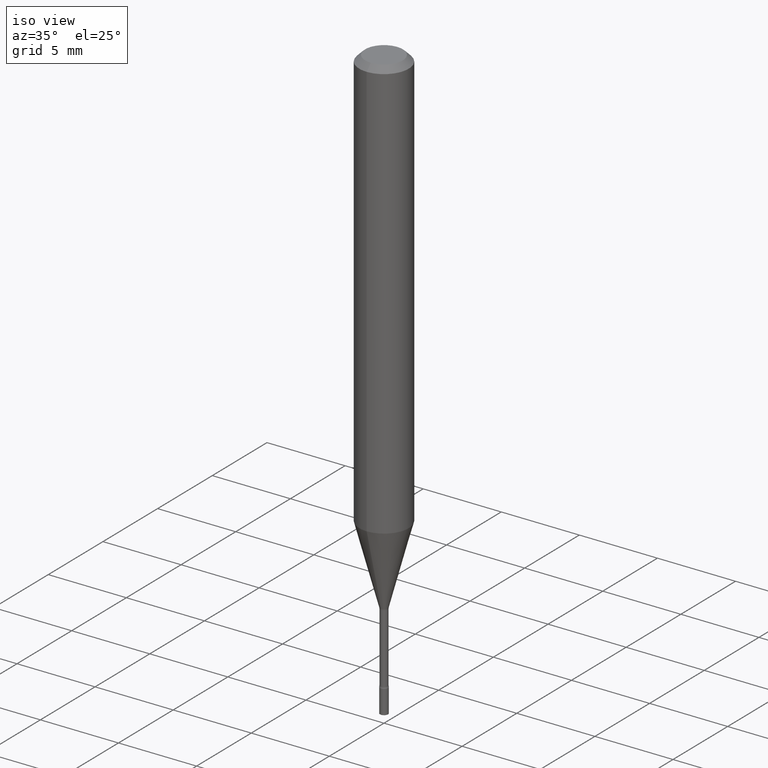
[diagram: clean part render]
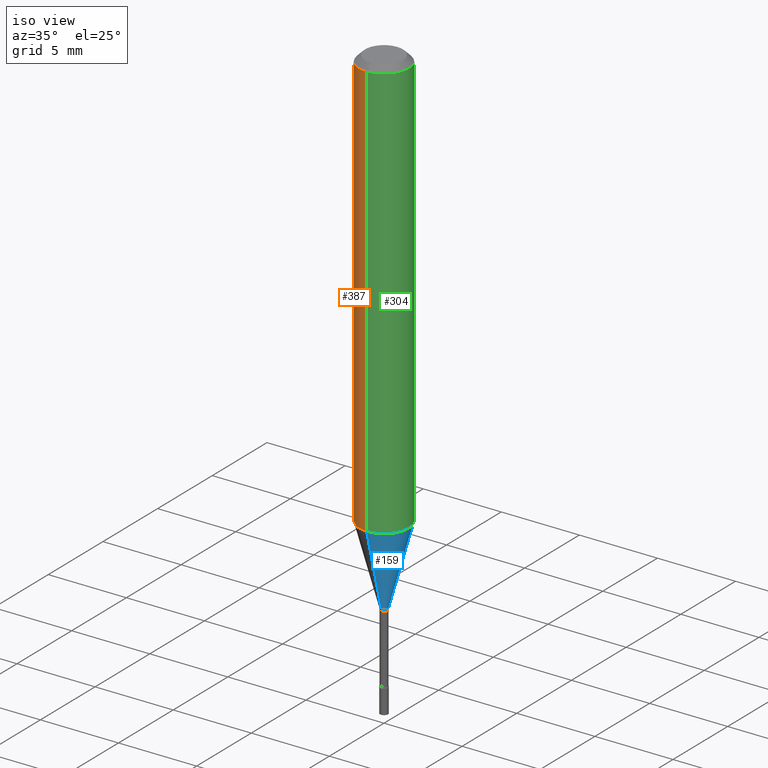
[diagram: same view with three faces highlighted in distinct colors, each labeled with its STEP entity id]
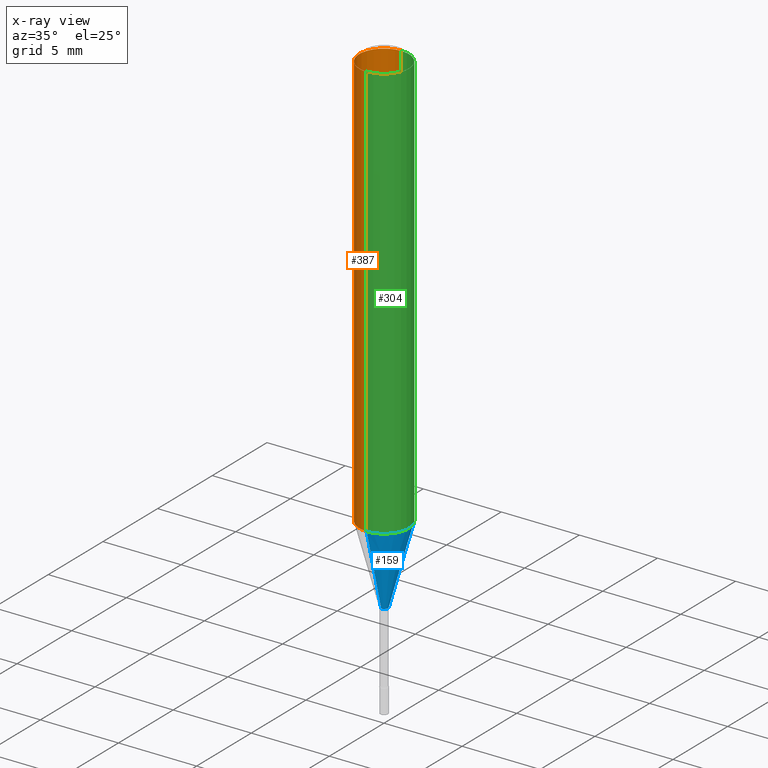
[diagram: x-ray of the same camera — body ghosted, the three highlighted faces saturated]
A machine part, iso view with three faces highlighted in distinct colors.
The next image is the same camera in x-ray (body ghosted, the three faces saturated) — at least one of them is partly hidden behind the body in this view.
Their STEP definitions:

[orange] entity #387 — the highlighted cylindrical surface (edge-blend (fillet) strip) has radius 1.5875 mm, axis along (-0, 0, 1).
#3 = DIRECTION ( 'NONE',  ( -6.982962677686265922E-15, -1.000000000000000000, 3.491392881467327032E-15 ) ) ;
#7 = LINE ( 'NONE', #397, #381 ) ;
#12 = CARTESIAN_POINT ( 'NONE',  ( 4.440892098500884514E-16, 0.06249999999999630157, -1.061828102118093309 ) ) ;
#21 = EDGE_CURVE ( 'NONE', #461, #32, #371, .T. ) ;
#32 = VERTEX_POINT ( 'NONE', #369 ) ;
#39 = DIRECTION ( 'NONE',  ( -2.445530575640527241E-29, 3.491392881467327032E-15, 1.000000000000000000 ) ) ;
#41 = VECTOR ( 'NONE', #420, 39.37007874015748143 ) ;
#62 = CIRCLE ( 'NONE', #341, 0.06250000000000000000 ) ;
#93 = FACE_OUTER_BOUND ( 'NONE', #323, .T. ) ;
#94 = ORIENTED_EDGE ( 'NONE', *, *, #317, .T. ) ;
#119 = VERTEX_POINT ( 'NONE', #419 ) ;
#137 = ORIENTED_EDGE ( 'NONE', *, *, #460, .F. ) ;
#150 = AXIS2_PLACEMENT_3D ( 'NONE', #315, #162, #3 ) ;
#162 = DIRECTION ( 'NONE',  ( -2.445530575640527241E-29, 3.491392881467327032E-15, 1.000000000000000000 ) ) ;
#171 = DIRECTION ( 'NONE',  ( -6.982962677686265922E-15, -1.000000000000000000, 3.483106191921935554E-15 ) ) ;
#175 = CARTESIAN_POINT ( 'NONE',  ( 4.440892098500625669E-16, 0.06250000000000000000, -2.182120550917079395E-16 ) ) ;
#213 = VERTEX_POINT ( 'NONE', #277 ) ;
#249 = CARTESIAN_POINT ( 'NONE',  ( 2.596733089804148317E-29, -3.707259077077071931E-15, -1.061828102118093087 ) ) ;
#277 = CARTESIAN_POINT ( 'NONE',  ( -4.364351673553657849E-16, -0.06250000000000371925, -1.061828102118092865 ) ) ;
#305 = CIRCLE ( 'NONE', #404, 0.06250000000000000000 ) ;
#314 = EDGE_CURVE ( 'NONE', #213, #119, #7, .T. ) ;
#315 = CARTESIAN_POINT ( 'NONE',  ( 0.000000000000000000, 0.000000000000000000, 0.000000000000000000 ) ) ;
#317 = EDGE_CURVE ( 'NONE', #461, #213, #305, .T. ) ;
#318 = CYLINDRICAL_SURFACE ( 'NONE', #150, 0.06250000000000000000 ) ;
#323 = EDGE_LOOP ( 'NONE', ( #489, #94, #502, #137 ) ) ;
#341 = AXIS2_PLACEMENT_3D ( 'NONE', #412, #418, #171 ) ;
#363 = DIRECTION ( 'NONE',  ( -6.982962677686265922E-15, -1.000000000000000000, 4.370956789862821150E-15 ) ) ;
#369 = CARTESIAN_POINT ( 'NONE',  ( 4.440892098500887472E-16, 0.06249999999999995837, -0.01500000000000024751 ) ) ;
#371 = LINE ( 'NONE', #175, #41 ) ;
#381 = VECTOR ( 'NONE', #405, 39.37007874015748143 ) ;
#387 = ADVANCED_FACE ( 'NONE', ( #93 ), #318, .T. ) ;
#397 = CARTESIAN_POINT ( 'NONE',  ( -4.364351673553916201E-16, -0.06250000000000000000, 2.182120550917079395E-16 ) ) ;
#404 = AXIS2_PLACEMENT_3D ( 'NONE', #249, #39, #363 ) ;
#405 = DIRECTION ( 'NONE',  ( -2.445530575640527241E-29, 3.491392881467327032E-15, 1.000000000000000000 ) ) ;
#412 = CARTESIAN_POINT ( 'NONE',  ( 3.668295863460798323E-31, -5.237089322201001616E-17, -0.01500000000000003067 ) ) ;
#418 = DIRECTION ( 'NONE',  ( -2.445530575640527241E-29, 3.491392881467327032E-15, 1.000000000000000000 ) ) ;
#419 = CARTESIAN_POINT ( 'NONE',  ( -4.364351673553912750E-16, -0.06250000000000005551, -0.01499999999999981209 ) ) ;
#420 = DIRECTION ( 'NONE',  ( -2.445530575640527241E-29, 3.491392881467327032E-15, 1.000000000000000000 ) ) ;
#460 = EDGE_CURVE ( 'NONE', #32, #119, #62, .T. ) ;
#461 = VERTEX_POINT ( 'NONE', #12 ) ;
#489 = ORIENTED_EDGE ( 'NONE', *, *, #21, .F. ) ;
#502 = ORIENTED_EDGE ( 'NONE', *, *, #314, .T. ) ;

[blue] entity #159 — the highlighted conical surface has half-angle 15 deg.
#12 = CARTESIAN_POINT ( 'NONE',  ( 4.440892098500884514E-16, 0.06249999999999630157, -1.061828102118093309 ) ) ;
#26 = DIRECTION ( 'NONE',  ( 1.839019923739596765E-15, 0.2588190451025244587, 0.9659258262890673130 ) ) ;
#58 = DIRECTION ( 'NONE',  ( -2.445530575640527241E-29, 3.491392881467327032E-15, 1.000000000000000000 ) ) ;
#67 = CARTESIAN_POINT ( 'NONE',  ( -6.920892941966668740E-17, -0.009911112605668374528, -1.258092501787273276 ) ) ;
#74 = CARTESIAN_POINT ( 'NONE',  ( -6.920892941966668740E-17, -0.009911112605668374528, -1.258092501787273276 ) ) ;
#75 = CARTESIAN_POINT ( 'NONE',  ( 7.042269065257976268E-17, 0.009911112605659589889, -1.258092501787273276 ) ) ;
#106 = CARTESIAN_POINT ( 'NONE',  ( 2.596733089804148317E-29, -3.707259077077071931E-15, -1.061828102118093087 ) ) ;
#125 = EDGE_LOOP ( 'NONE', ( #166, #463, #383, #493 ) ) ;
#133 = DIRECTION ( 'NONE',  ( -2.445530575640527241E-29, 3.491392881467327032E-15, 1.000000000000000000 ) ) ;
#141 = FACE_OUTER_BOUND ( 'NONE', #125, .T. ) ;
#159 = ADVANCED_FACE ( 'NONE', ( #141 ), #514, .T. ) ;
#165 = VECTOR ( 'NONE', #26, 39.37007874015748143 ) ;
#166 = ORIENTED_EDGE ( 'NONE', *, *, #498, .T. ) ;
#176 = AXIS2_PLACEMENT_3D ( 'NONE', #106, #215, #406 ) ;
#178 = CARTESIAN_POINT ( 'NONE',  ( 3.076703680104861459E-29, -4.392495204967507173E-15, -1.258092501787273276 ) ) ;
#213 = VERTEX_POINT ( 'NONE', #277 ) ;
#215 = DIRECTION ( 'NONE',  ( -2.445530575640527241E-29, 3.491392881467327032E-15, 1.000000000000000000 ) ) ;
#218 = DIRECTION ( 'NONE',  ( -6.982962677686264344E-15, -1.000000000000000000, 0.000000000000000000 ) ) ;
#263 = VERTEX_POINT ( 'NONE', #74 ) ;
#268 = EDGE_CURVE ( 'NONE', #263, #213, #310, .T. ) ;
#270 = DIRECTION ( 'NONE',  ( -6.982962677686264344E-15, -1.000000000000000000, 0.000000000000000000 ) ) ;
#271 = EDGE_CURVE ( 'NONE', #366, #461, #428, .T. ) ;
#277 = CARTESIAN_POINT ( 'NONE',  ( -4.364351673553657849E-16, -0.06250000000000371925, -1.061828102118092865 ) ) ;
#286 = AXIS2_PLACEMENT_3D ( 'NONE', #329, #133, #270 ) ;
#298 = CIRCLE ( 'NONE', #452, 0.009911112605663982209 ) ;
#310 = LINE ( 'NONE', #67, #391 ) ;
#329 = CARTESIAN_POINT ( 'NONE',  ( 3.076703680104861459E-29, -4.392495204967507173E-15, -1.258092501787273276 ) ) ;
#357 = CIRCLE ( 'NONE', #176, 0.06250000000000000000 ) ;
#366 = VERTEX_POINT ( 'NONE', #488 ) ;
#383 = ORIENTED_EDGE ( 'NONE', *, *, #503, .F. ) ;
#391 = VECTOR ( 'NONE', #474, 39.37007874015748854 ) ;
#406 = DIRECTION ( 'NONE',  ( -6.982962677686265922E-15, -1.000000000000000000, 4.370956789862821150E-15 ) ) ;
#428 = LINE ( 'NONE', #75, #165 ) ;
#452 = AXIS2_PLACEMENT_3D ( 'NONE', #178, #58, #218 ) ;
#461 = VERTEX_POINT ( 'NONE', #12 ) ;
#463 = ORIENTED_EDGE ( 'NONE', *, *, #271, .T. ) ;
#474 = DIRECTION ( 'NONE',  ( -1.807323732225326589E-15, -0.2588190451025176864, 0.9659258262890690894 ) ) ;
#488 = CARTESIAN_POINT ( 'NONE',  ( 2.572559502513342919E-16, 0.009911112605659589889, -1.258092501787273276 ) ) ;
#493 = ORIENTED_EDGE ( 'NONE', *, *, #268, .F. ) ;
#498 = EDGE_CURVE ( 'NONE', #263, #366, #298, .T. ) ;
#503 = EDGE_CURVE ( 'NONE', #213, #461, #357, .T. ) ;
#514 = CONICAL_SURFACE ( 'NONE', #286, 0.009911112605663982209, 0.2617993877991497409 ) ;

[green] entity #304 — the highlighted cylindrical surface (edge-blend (fillet) strip) has radius 1.5875 mm, axis along (-0, 0, 1).
#7 = LINE ( 'NONE', #397, #381 ) ;
#12 = CARTESIAN_POINT ( 'NONE',  ( 4.440892098500884514E-16, 0.06249999999999630157, -1.061828102118093309 ) ) ;
#21 = EDGE_CURVE ( 'NONE', #461, #32, #371, .T. ) ;
#29 = ORIENTED_EDGE ( 'NONE', *, *, #503, .T. ) ;
#32 = VERTEX_POINT ( 'NONE', #369 ) ;
#35 = AXIS2_PLACEMENT_3D ( 'NONE', #81, #483, #90 ) ;
#41 = VECTOR ( 'NONE', #420, 39.37007874015748143 ) ;
#46 = DIRECTION ( 'NONE',  ( -6.982962677686265922E-15, -1.000000000000000000, 3.483106191921935554E-15 ) ) ;
#81 = CARTESIAN_POINT ( 'NONE',  ( 0.000000000000000000, 0.000000000000000000, 0.000000000000000000 ) ) ;
#90 = DIRECTION ( 'NONE',  ( -6.982962677686265922E-15, -1.000000000000000000, 3.491392881467327032E-15 ) ) ;
#106 = CARTESIAN_POINT ( 'NONE',  ( 2.596733089804148317E-29, -3.707259077077071931E-15, -1.061828102118093087 ) ) ;
#116 = CIRCLE ( 'NONE', #479, 0.06250000000000000000 ) ;
#119 = VERTEX_POINT ( 'NONE', #419 ) ;
#175 = CARTESIAN_POINT ( 'NONE',  ( 4.440892098500625669E-16, 0.06250000000000000000, -2.182120550917079395E-16 ) ) ;
#176 = AXIS2_PLACEMENT_3D ( 'NONE', #106, #215, #406 ) ;
#189 = EDGE_LOOP ( 'NONE', ( #29, #471, #438, #447 ) ) ;
#213 = VERTEX_POINT ( 'NONE', #277 ) ;
#215 = DIRECTION ( 'NONE',  ( -2.445530575640527241E-29, 3.491392881467327032E-15, 1.000000000000000000 ) ) ;
#247 = CYLINDRICAL_SURFACE ( 'NONE', #35, 0.06250000000000000000 ) ;
#277 = CARTESIAN_POINT ( 'NONE',  ( -4.364351673553657849E-16, -0.06250000000000371925, -1.061828102118092865 ) ) ;
#287 = EDGE_CURVE ( 'NONE', #119, #32, #116, .T. ) ;
#304 = ADVANCED_FACE ( 'NONE', ( #440 ), #247, .T. ) ;
#307 = DIRECTION ( 'NONE',  ( -2.445530575640527241E-29, 3.491392881467327032E-15, 1.000000000000000000 ) ) ;
#314 = EDGE_CURVE ( 'NONE', #213, #119, #7, .T. ) ;
#357 = CIRCLE ( 'NONE', #176, 0.06250000000000000000 ) ;
#369 = CARTESIAN_POINT ( 'NONE',  ( 4.440892098500887472E-16, 0.06249999999999995837, -0.01500000000000024751 ) ) ;
#371 = LINE ( 'NONE', #175, #41 ) ;
#381 = VECTOR ( 'NONE', #405, 39.37007874015748143 ) ;
#397 = CARTESIAN_POINT ( 'NONE',  ( -4.364351673553916201E-16, -0.06250000000000000000, 2.182120550917079395E-16 ) ) ;
#405 = DIRECTION ( 'NONE',  ( -2.445530575640527241E-29, 3.491392881467327032E-15, 1.000000000000000000 ) ) ;
#406 = DIRECTION ( 'NONE',  ( -6.982962677686265922E-15, -1.000000000000000000, 4.370956789862821150E-15 ) ) ;
#419 = CARTESIAN_POINT ( 'NONE',  ( -4.364351673553912750E-16, -0.06250000000000005551, -0.01499999999999981209 ) ) ;
#420 = DIRECTION ( 'NONE',  ( -2.445530575640527241E-29, 3.491392881467327032E-15, 1.000000000000000000 ) ) ;
#438 = ORIENTED_EDGE ( 'NONE', *, *, #287, .F. ) ;
#440 = FACE_OUTER_BOUND ( 'NONE', #189, .T. ) ;
#447 = ORIENTED_EDGE ( 'NONE', *, *, #314, .F. ) ;
#461 = VERTEX_POINT ( 'NONE', #12 ) ;
#471 = ORIENTED_EDGE ( 'NONE', *, *, #21, .T. ) ;
#479 = AXIS2_PLACEMENT_3D ( 'NONE', #508, #307, #46 ) ;
#483 = DIRECTION ( 'NONE',  ( -2.445530575640527241E-29, 3.491392881467327032E-15, 1.000000000000000000 ) ) ;
#503 = EDGE_CURVE ( 'NONE', #213, #461, #357, .T. ) ;
#508 = CARTESIAN_POINT ( 'NONE',  ( 3.668295863460798323E-31, -5.237089322201001616E-17, -0.01500000000000003067 ) ) ;